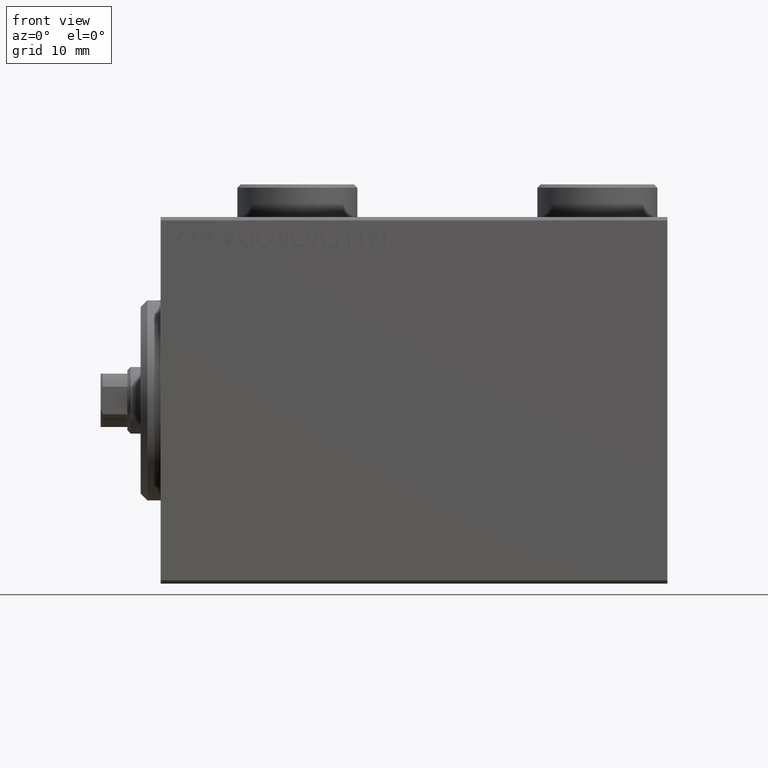
[diagram: clean part render]
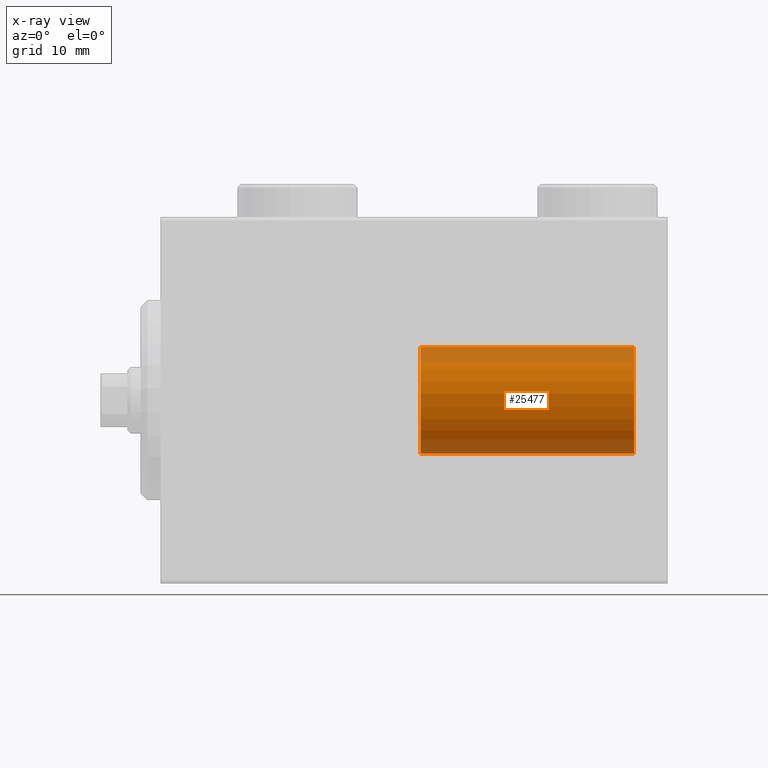
[diagram: x-ray — body ghosted, one internal face saturated and labeled with its STEP entity id]
A machine part, front view, then the same camera in x-ray: the body is ghosted and one INTERNAL B-rep face — a face not visible from any outside direction — is saturated and labeled: STEP entity #25477.
In plain terms, the highlighted cylindrical surface (partial cylindrical patch) has radius 8 mm, axis along (1, -0, -0).
Its self-contained STEP definition (entity closure, byte-faithful):
#802 = EDGE_CURVE ( 'NONE', #36952, #39304, #11578, .T. ) ;
#2691 = DIRECTION ( 'NONE',  ( -1.000000000000000000, 0.000000000000000000, 0.000000000000000000 ) ) ;
#3195 = EDGE_CURVE ( 'NONE', #17296, #39304, #34071, .T. ) ;
#5922 = CARTESIAN_POINT ( 'NONE',  ( 0.000000000000000000, 0.000000000000000000, 32.00000000000000000 ) ) ;
#7006 = VERTEX_POINT ( 'NONE', #27400 ) ;
#7328 = CARTESIAN_POINT ( 'NONE',  ( 0.000000000000000000, 0.000000000000000000, 32.00000000000000000 ) ) ;
#7332 = DIRECTION ( 'NONE',  ( -0.000000000000000000, -0.000000000000000000, -1.000000000000000000 ) ) ;
#7564 = LINE ( 'NONE', #11253, #18122 ) ;
#8002 = DIRECTION ( 'NONE',  ( 1.000000000000000000, 0.000000000000000000, 0.000000000000000000 ) ) ;
#10622 = AXIS2_PLACEMENT_3D ( 'NONE', #7328, #14248, #8002 ) ;
#11253 = CARTESIAN_POINT ( 'NONE',  ( -8.000000000000000000, 0.000000000000000000, 32.00000000000000000 ) ) ;
#11578 = CIRCLE ( 'NONE', #37309, 8.000000000000000000 ) ;
#12148 = DIRECTION ( 'NONE',  ( -0.000000000000000000, -0.000000000000000000, -1.000000000000000000 ) ) ;
#12421 = DIRECTION ( 'NONE',  ( -0.000000000000000000, -0.000000000000000000, -1.000000000000000000 ) ) ;
#14248 = DIRECTION ( 'NONE',  ( 0.000000000000000000, 0.000000000000000000, 1.000000000000000000 ) ) ;
#15699 = EDGE_LOOP ( 'NONE', ( #33460, #42566, #18965, #39777 ) ) ;
#16328 = CARTESIAN_POINT ( 'NONE',  ( 8.000000000000000000, 9.797174393178825657E-16, 32.00000000000000000 ) ) ;
#17296 = VERTEX_POINT ( 'NONE', #33951 ) ;
#18122 = VECTOR ( 'NONE', #7332, 1000.000000000000000 ) ;
#18965 = ORIENTED_EDGE ( 'NONE', *, *, #42936, .T. ) ;
#19738 = CYLINDRICAL_SURFACE ( 'NONE', #39778, 8.000000000000000000 ) ;
#20577 = CARTESIAN_POINT ( 'NONE',  ( -8.000000000000000000, 0.000000000000000000, 0.000000000000000000 ) ) ;
#20894 = CIRCLE ( 'NONE', #10622, 8.000000000000000000 ) ;
#24685 = CARTESIAN_POINT ( 'NONE',  ( 0.000000000000000000, 0.000000000000000000, 0.000000000000000000 ) ) ;
#25477 = ADVANCED_FACE ( 'NONE', ( #34253 ), #19738, .T. ) ;
#27400 = CARTESIAN_POINT ( 'NONE',  ( -8.000000000000000000, 0.000000000000000000, 32.00000000000000000 ) ) ;
#28826 = CARTESIAN_POINT ( 'NONE',  ( 8.000000000000000000, 9.797174393178825657E-16, 0.000000000000000000 ) ) ;
#33460 = ORIENTED_EDGE ( 'NONE', *, *, #3195, .F. ) ;
#33951 = CARTESIAN_POINT ( 'NONE',  ( 8.000000000000000000, 9.797174393178825657E-16, 32.00000000000000000 ) ) ;
#34071 = LINE ( 'NONE', #16328, #35177 ) ;
#34253 = FACE_OUTER_BOUND ( 'NONE', #15699, .T. ) ;
#35177 = VECTOR ( 'NONE', #12421, 1000.000000000000000 ) ;
#36952 = VERTEX_POINT ( 'NONE', #20577 ) ;
#37309 = AXIS2_PLACEMENT_3D ( 'NONE', #24685, #42416, #38511 ) ;
#38511 = DIRECTION ( 'NONE',  ( 1.000000000000000000, 0.000000000000000000, 0.000000000000000000 ) ) ;
#38586 = EDGE_CURVE ( 'NONE', #7006, #17296, #20894, .T. ) ;
#39304 = VERTEX_POINT ( 'NONE', #28826 ) ;
#39777 = ORIENTED_EDGE ( 'NONE', *, *, #802, .T. ) ;
#39778 = AXIS2_PLACEMENT_3D ( 'NONE', #5922, #12148, #2691 ) ;
#42416 = DIRECTION ( 'NONE',  ( 0.000000000000000000, 0.000000000000000000, 1.000000000000000000 ) ) ;
#42566 = ORIENTED_EDGE ( 'NONE', *, *, #38586, .F. ) ;
#42936 = EDGE_CURVE ( 'NONE', #7006, #36952, #7564, .T. ) ;